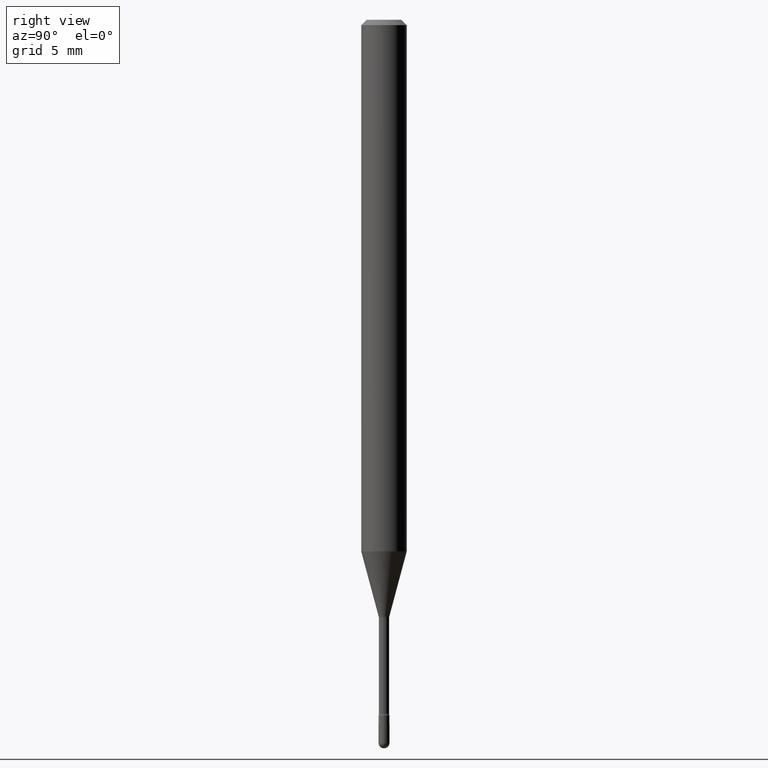
[diagram: clean part render]
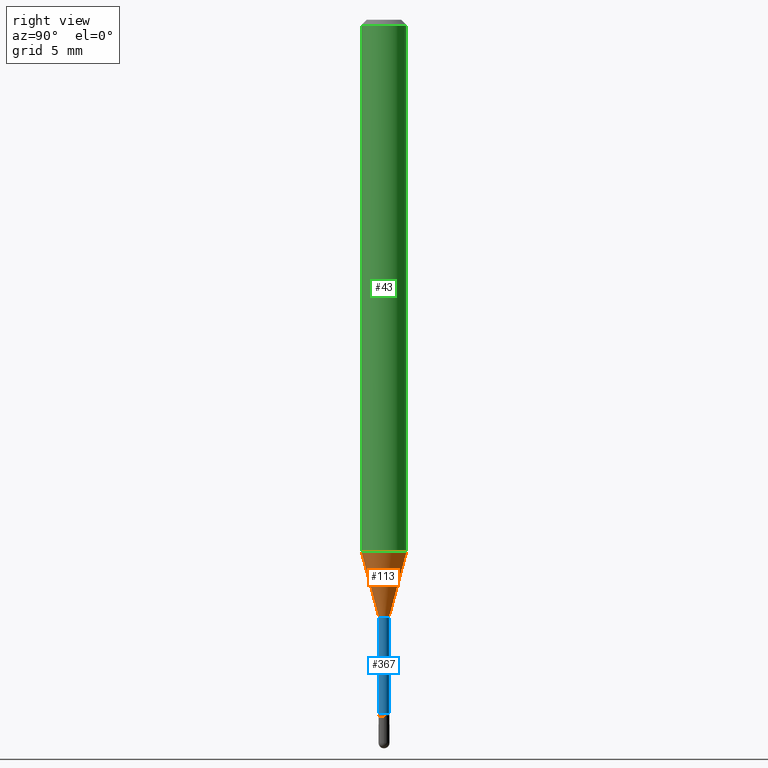
[diagram: same view with three faces highlighted in distinct colors, each labeled with its STEP entity id]
A machine part, right view with three faces highlighted in distinct colors.
Their STEP definitions:

[orange] entity #113 — the highlighted conical surface has half-angle 15 deg.
#7 = ORIENTED_EDGE ( 'NONE', *, *, #541, .T. ) ;
#18 = DIRECTION ( 'NONE',  ( -6.982962677686265922E-15, -1.000000000000000000, 0.000000000000000000 ) ) ;
#34 = CIRCLE ( 'NONE', #61, 0.06250000000000000000 ) ;
#53 = VECTOR ( 'NONE', #201, 39.37007874015748854 ) ;
#54 = VERTEX_POINT ( 'NONE', #58 ) ;
#58 = CARTESIAN_POINT ( 'NONE',  ( -1.020288540047823140E-16, -0.01461111260566962632, -1.638092501787273614 ) ) ;
#61 = AXIS2_PLACEMENT_3D ( 'NONE', #317, #63, #105 ) ;
#63 = DIRECTION ( 'NONE',  ( -2.445474320287489972E-29, 3.491473442334732541E-15, 1.000000000000000000 ) ) ;
#66 = CARTESIAN_POINT ( 'NONE',  ( -1.020288540047823140E-16, -0.01461111260566962632, -1.638092501787273614 ) ) ;
#70 = VERTEX_POINT ( 'NONE', #444 ) ;
#96 = CARTESIAN_POINT ( 'NONE',  ( 4.440892098500981149E-16, 0.06249999999999489991, -1.459368740913666862 ) ) ;
#102 = AXIS2_PLACEMENT_3D ( 'NONE', #360, #542, #203 ) ;
#105 = DIRECTION ( 'NONE',  ( -6.982962677686265922E-15, -1.000000000000000000, 4.370956789862821150E-15 ) ) ;
#113 = ADVANCED_FACE ( 'NONE', ( #489 ), #409, .T. ) ;
#131 = ORIENTED_EDGE ( 'NONE', *, *, #517, .T. ) ;
#140 = LINE ( 'NONE', #327, #346 ) ;
#144 = DIRECTION ( 'NONE',  ( 1.839019923739594004E-15, 0.2588190451025240701, 0.9659258262890673130 ) ) ;
#201 = DIRECTION ( 'NONE',  ( -1.807323732225323828E-15, -0.2588190451025172978, 0.9659258262890690894 ) ) ;
#203 = DIRECTION ( 'NONE',  ( -6.982962677686265922E-15, -1.000000000000000000, 0.000000000000000000 ) ) ;
#268 = ORIENTED_EDGE ( 'NONE', *, *, #526, .F. ) ;
#285 = EDGE_LOOP ( 'NONE', ( #131, #7, #299, #268 ) ) ;
#290 = VERTEX_POINT ( 'NONE', #96 ) ;
#299 = ORIENTED_EDGE ( 'NONE', *, *, #544, .F. ) ;
#317 = CARTESIAN_POINT ( 'NONE',  ( 3.568848779734659217E-29, -5.095347201473544017E-15, -1.459368740913666640 ) ) ;
#327 = CARTESIAN_POINT ( 'NONE',  ( 1.038181992333132303E-16, 0.01461111260565818581, -1.638092501787273614 ) ) ;
#346 = VECTOR ( 'NONE', #144, 39.37007874015748854 ) ;
#360 = CARTESIAN_POINT ( 'NONE',  ( 4.005913147376267210E-29, -5.719356466077926912E-15, -1.638092501787273614 ) ) ;
#392 = AXIS2_PLACEMENT_3D ( 'NONE', #498, #491, #18 ) ;
#394 = CIRCLE ( 'NONE', #102, 0.01461111260566390693 ) ;
#406 = CARTESIAN_POINT ( 'NONE',  ( -4.364351673553560228E-16, -0.06250000000000510703, -1.459368740913666196 ) ) ;
#409 = CONICAL_SURFACE ( 'NONE', #392, 0.01461111260566390693, 0.2617993877991494078 ) ;
#444 = CARTESIAN_POINT ( 'NONE',  ( 2.739537045417059006E-16, 0.01461111260565818581, -1.638092501787273614 ) ) ;
#489 = FACE_OUTER_BOUND ( 'NONE', #285, .T. ) ;
#491 = DIRECTION ( 'NONE',  ( -2.445474320287489972E-29, 3.491473442334732541E-15, 1.000000000000000000 ) ) ;
#498 = CARTESIAN_POINT ( 'NONE',  ( 4.005913147376267210E-29, -5.719356466077926912E-15, -1.638092501787273614 ) ) ;
#517 = EDGE_CURVE ( 'NONE', #54, #70, #394, .T. ) ;
#525 = VERTEX_POINT ( 'NONE', #406 ) ;
#526 = EDGE_CURVE ( 'NONE', #54, #525, #538, .T. ) ;
#538 = LINE ( 'NONE', #66, #53 ) ;
#541 = EDGE_CURVE ( 'NONE', #70, #290, #140, .T. ) ;
#542 = DIRECTION ( 'NONE',  ( -2.445474320287489972E-29, 3.491473442334732541E-15, 1.000000000000000000 ) ) ;
#544 = EDGE_CURVE ( 'NONE', #525, #290, #34, .T. ) ;

[blue] entity #367 — the highlighted cylindrical surface (edge-blend (fillet) strip) has radius 0.3581 mm, axis along (-0, 0, 1).
#4 = DIRECTION ( 'NONE',  ( -2.445474320287489972E-29, 3.491473442334732541E-15, 1.000000000000000000 ) ) ;
#20 = CARTESIAN_POINT ( 'NONE',  ( 4.015407177302259338E-29, -5.732911363413114048E-15, -1.641974787463811314 ) ) ;
#47 = ORIENTED_EDGE ( 'NONE', *, *, #142, .T. ) ;
#49 = VECTOR ( 'NONE', #460, 39.37007874015748143 ) ;
#60 = CARTESIAN_POINT ( 'NONE',  ( -9.845977375532975906E-17, -0.01410000000000665062, -1.904882383367230370 ) ) ;
#77 = AXIS2_PLACEMENT_3D ( 'NONE', #169, #4, #386 ) ;
#78 = CIRCLE ( 'NONE', #507, 0.01410000000000000142 ) ;
#80 = LINE ( 'NONE', #336, #49 ) ;
#91 = CYLINDRICAL_SURFACE ( 'NONE', #77, 0.01409999999999999795 ) ;
#94 = AXIS2_PLACEMENT_3D ( 'NONE', #20, #495, #95 ) ;
#95 = DIRECTION ( 'NONE',  ( -6.982962677686265133E-15, -1.000000000000000000, 0.000000000000000000 ) ) ;
#142 = EDGE_CURVE ( 'NONE', #237, #207, #197, .T. ) ;
#159 = VERTEX_POINT ( 'NONE', #178 ) ;
#162 = ORIENTED_EDGE ( 'NONE', *, *, #509, .T. ) ;
#169 = CARTESIAN_POINT ( 'NONE',  ( -1.169113584055446105E-44, 1.669184350826100908E-30, 4.780733988912460139E-16 ) ) ;
#178 = CARTESIAN_POINT ( 'NONE',  ( -9.845977375533614390E-17, -0.01410000000000572774, -1.641974787463811314 ) ) ;
#196 = CARTESIAN_POINT ( 'NONE',  ( 4.658340951692591124E-29, -6.650846252297974174E-15, -1.904882383367230370 ) ) ;
#197 = LINE ( 'NONE', #453, #312 ) ;
#207 = VERTEX_POINT ( 'NONE', #531 ) ;
#237 = VERTEX_POINT ( 'NONE', #368 ) ;
#275 = EDGE_CURVE ( 'NONE', #159, #207, #277, .T. ) ;
#277 = CIRCLE ( 'NONE', #94, 0.01409999999999999448 ) ;
#312 = VECTOR ( 'NONE', #361, 39.37007874015748143 ) ;
#336 = CARTESIAN_POINT ( 'NONE',  ( -9.845977375537633883E-17, -0.01409999999999999795, 5.273031744281658030E-16 ) ) ;
#361 = DIRECTION ( 'NONE',  ( -2.445474320287489692E-29, 3.491473442334732541E-15, 1.000000000000000000 ) ) ;
#363 = ORIENTED_EDGE ( 'NONE', *, *, #275, .F. ) ;
#367 = ADVANCED_FACE ( 'NONE', ( #484 ), #91, .T. ) ;
#368 = CARTESIAN_POINT ( 'NONE',  ( 1.033839680531413201E-16, 0.01409999999999335049, -1.904882383367230370 ) ) ;
#371 = EDGE_CURVE ( 'NONE', #471, #159, #80, .T. ) ;
#386 = DIRECTION ( 'NONE',  ( -6.982962677686265922E-15, -1.000000000000000000, 3.491473442334735302E-15 ) ) ;
#453 = CARTESIAN_POINT ( 'NONE',  ( 1.001865257421740993E-16, 0.01409999999999999795, 4.288436233543263234E-16 ) ) ;
#455 = DIRECTION ( 'NONE',  ( -6.982962677686265133E-15, -1.000000000000000000, 0.000000000000000000 ) ) ;
#460 = DIRECTION ( 'NONE',  ( -2.445474320287489692E-29, 3.491473442334732541E-15, 1.000000000000000000 ) ) ;
#471 = VERTEX_POINT ( 'NONE', #60 ) ;
#484 = FACE_OUTER_BOUND ( 'NONE', #530, .T. ) ;
#490 = DIRECTION ( 'NONE',  ( -2.445474320287489972E-29, 3.491473442334732541E-15, 1.000000000000000000 ) ) ;
#495 = DIRECTION ( 'NONE',  ( -2.445474320287489972E-29, 3.491473442334732541E-15, 1.000000000000000000 ) ) ;
#500 = ORIENTED_EDGE ( 'NONE', *, *, #371, .F. ) ;
#507 = AXIS2_PLACEMENT_3D ( 'NONE', #196, #490, #455 ) ;
#509 = EDGE_CURVE ( 'NONE', #471, #237, #78, .T. ) ;
#530 = EDGE_LOOP ( 'NONE', ( #162, #47, #363, #500 ) ) ;
#531 = CARTESIAN_POINT ( 'NONE',  ( 1.001865257422207161E-16, 0.01409999999999426122, -1.641974787463811314 ) ) ;

[green] entity #43 — the highlighted cylindrical surface (edge-blend (fillet) strip) has radius 1.5875 mm, axis along (-0, 0, 1).
#16 = DIRECTION ( 'NONE',  ( -6.982962677686265922E-15, -1.000000000000000000, 3.491473442334732146E-15 ) ) ;
#34 = CIRCLE ( 'NONE', #61, 0.06250000000000000000 ) ;
#43 = ADVANCED_FACE ( 'NONE', ( #188 ), #260, .T. ) ;
#52 = LINE ( 'NONE', #467, #352 ) ;
#61 = AXIS2_PLACEMENT_3D ( 'NONE', #317, #63, #105 ) ;
#63 = DIRECTION ( 'NONE',  ( -2.445474320287489972E-29, 3.491473442334732541E-15, 1.000000000000000000 ) ) ;
#89 = CARTESIAN_POINT ( 'NONE',  ( 4.440892098500625669E-16, 0.06250000000000000000, 2.598563087453252794E-16 ) ) ;
#96 = CARTESIAN_POINT ( 'NONE',  ( 4.440892098500981149E-16, 0.06249999999999489991, -1.459368740913666862 ) ) ;
#101 = DIRECTION ( 'NONE',  ( -2.445474320287489972E-29, 3.491473442334732541E-15, 1.000000000000000000 ) ) ;
#105 = DIRECTION ( 'NONE',  ( -6.982962677686265922E-15, -1.000000000000000000, 4.370956789862821150E-15 ) ) ;
#132 = LINE ( 'NONE', #89, #374 ) ;
#147 = DIRECTION ( 'NONE',  ( -6.982962677686265922E-15, -1.000000000000000000, 3.483106191921935554E-15 ) ) ;
#168 = ORIENTED_EDGE ( 'NONE', *, *, #544, .T. ) ;
#179 = CARTESIAN_POINT ( 'NONE',  ( 4.440892098500985093E-16, 0.06249999999999995143, -0.01500000000000030129 ) ) ;
#188 = FACE_OUTER_BOUND ( 'NONE', #405, .T. ) ;
#227 = EDGE_CURVE ( 'NONE', #525, #301, #52, .T. ) ;
#244 = CARTESIAN_POINT ( 'NONE',  ( -4.364351673553912750E-16, -0.06250000000000005551, -0.01499999999999986587 ) ) ;
#257 = ORIENTED_EDGE ( 'NONE', *, *, #462, .F. ) ;
#258 = DIRECTION ( 'NONE',  ( -2.445474320287489692E-29, 3.491473442334732541E-15, 1.000000000000000000 ) ) ;
#260 = CYLINDRICAL_SURFACE ( 'NONE', #556, 0.06250000000000000000 ) ;
#267 = EDGE_CURVE ( 'NONE', #290, #334, #132, .T. ) ;
#269 = CARTESIAN_POINT ( 'NONE',  ( -1.169113584055446105E-44, 1.669184350826100908E-30, 4.780733988912460139E-16 ) ) ;
#274 = DIRECTION ( 'NONE',  ( -2.445474320287489972E-29, 3.491473442334732541E-15, 1.000000000000000000 ) ) ;
#278 = AXIS2_PLACEMENT_3D ( 'NONE', #545, #101, #147 ) ;
#290 = VERTEX_POINT ( 'NONE', #96 ) ;
#301 = VERTEX_POINT ( 'NONE', #244 ) ;
#310 = DIRECTION ( 'NONE',  ( -2.445474320287489692E-29, 3.491473442334732541E-15, 1.000000000000000000 ) ) ;
#317 = CARTESIAN_POINT ( 'NONE',  ( 3.568848779734659217E-29, -5.095347201473544017E-15, -1.459368740913666640 ) ) ;
#329 = ORIENTED_EDGE ( 'NONE', *, *, #227, .F. ) ;
#334 = VERTEX_POINT ( 'NONE', #179 ) ;
#352 = VECTOR ( 'NONE', #258, 39.37007874015748143 ) ;
#354 = CIRCLE ( 'NONE', #278, 0.06250000000000000000 ) ;
#374 = VECTOR ( 'NONE', #310, 39.37007874015748143 ) ;
#405 = EDGE_LOOP ( 'NONE', ( #168, #482, #257, #329 ) ) ;
#406 = CARTESIAN_POINT ( 'NONE',  ( -4.364351673553560228E-16, -0.06250000000000510703, -1.459368740913666196 ) ) ;
#462 = EDGE_CURVE ( 'NONE', #301, #334, #354, .T. ) ;
#467 = CARTESIAN_POINT ( 'NONE',  ( -4.364351673553916201E-16, -0.06250000000000000000, 6.962904890371667977E-16 ) ) ;
#482 = ORIENTED_EDGE ( 'NONE', *, *, #267, .T. ) ;
#525 = VERTEX_POINT ( 'NONE', #406 ) ;
#544 = EDGE_CURVE ( 'NONE', #525, #290, #34, .T. ) ;
#545 = CARTESIAN_POINT ( 'NONE',  ( 3.668211480431254910E-31, -5.237210163502127580E-17, -0.01500000000000008271 ) ) ;
#556 = AXIS2_PLACEMENT_3D ( 'NONE', #269, #274, #16 ) ;